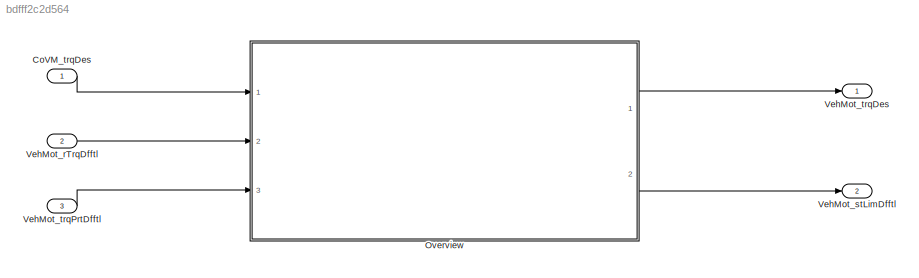
MODEL slx_bdfff2c2d564
KIND model
CONFIG AbsTol = auto
CONFIG EnableMultiTasking = off
CONFIG FixedStep = auto
CONFIG MaxStep = auto
CONFIG MinStep = auto
CONFIG RelTol = 1e-3
CONFIG SampleTimeConstraint = Unconstrained
CONFIG Solver = VariableStepAuto
CONFIG SolverName = VariableStepAuto
CONFIG StartTime = 0.0
CONFIG StopTime = 10.0
BLOCK [Inport] CoVM_trqDes
  IconDisplay = Port number
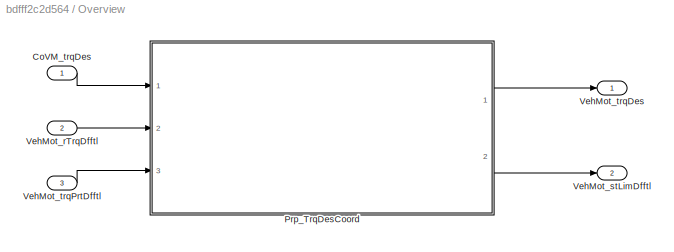
BLOCK [SubSystem] Overview
  Ports = [3, 2]
  RequestExecContextInheritance = off
BLOCK [Inport] Overview/CoVM_trqDes
  IconDisplay = Port number
BLOCK [ModelReference] Overview/Prp_TrqDesCoord
  ModelNameDialog = Prp_TrqDesCoord
  ModelReferenceVersion = 1.49
  Ports = [3, 2]
BLOCK [Inport] Overview/VehMot_rTrqDfftl
  IconDisplay = Port number
  Port = 2
BLOCK [Outport] Overview/VehMot_stLimDfftl
  IconDisplay = Port number
  Port = 2
BLOCK [Outport] Overview/VehMot_trqDes
  IconDisplay = Port number
BLOCK [Inport] Overview/VehMot_trqPrtDfftl
  IconDisplay = Port number
  Port = 3
BLOCK [Inport] VehMot_rTrqDfftl
  IconDisplay = Port number
  Port = 2
BLOCK [Outport] VehMot_stLimDfftl
  IconDisplay = Port number
  Port = 2
BLOCK [Outport] VehMot_trqDes
  IconDisplay = Port number
BLOCK [Inport] VehMot_trqPrtDfftl
  IconDisplay = Port number
  Port = 3
LINE CoVM_trqDes:1 -> Overview:1
LINE Overview/CoVM_trqDes:1 -> Overview/Prp_TrqDesCoord:1
LINE Overview/Prp_TrqDesCoord:1 -> Overview/VehMot_trqDes:1
LINE Overview/Prp_TrqDesCoord:2 -> Overview/VehMot_stLimDfftl:1
LINE Overview/VehMot_rTrqDfftl:1 -> Overview/Prp_TrqDesCoord:2
LINE Overview/VehMot_trqPrtDfftl:1 -> Overview/Prp_TrqDesCoord:3
LINE Overview:1 -> VehMot_trqDes:1
LINE Overview:2 -> VehMot_stLimDfftl:1
LINE VehMot_rTrqDfftl:1 -> Overview:2
LINE VehMot_trqPrtDfftl:1 -> Overview:3
